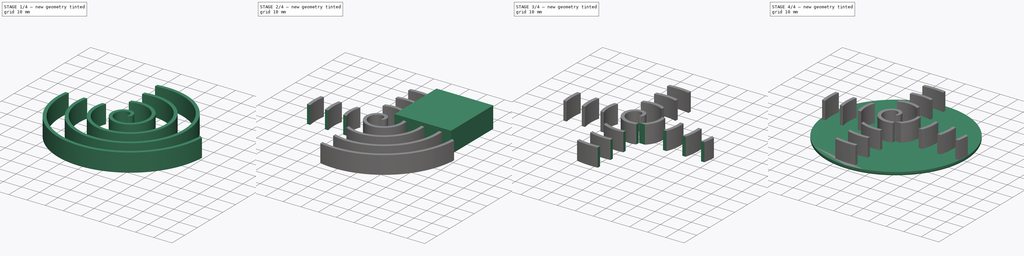
[diagram: build sequence overview — one tinted view per stage of 4, left to right]
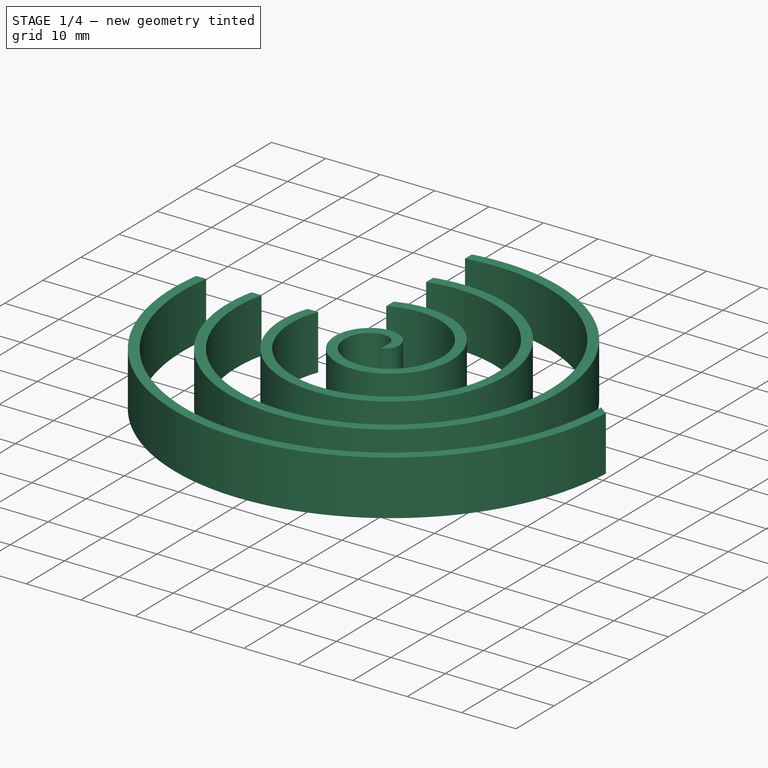
[diagram: stage 1 of 4 — iso view after this stage's code; geometry added in this stage tinted green]
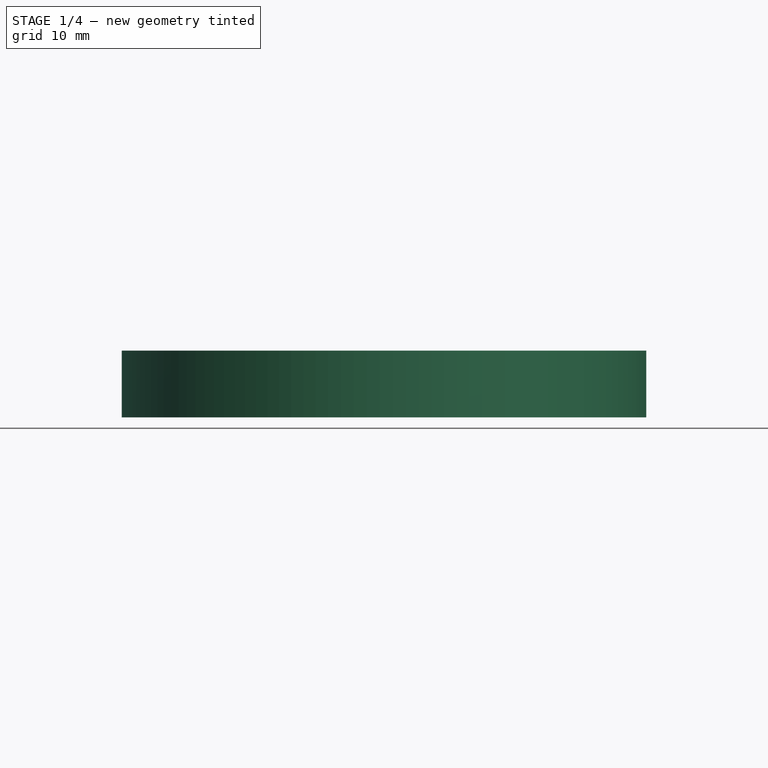
[diagram: stage 1 of 4 — front view after this stage's code; geometry added in this stage tinted green]
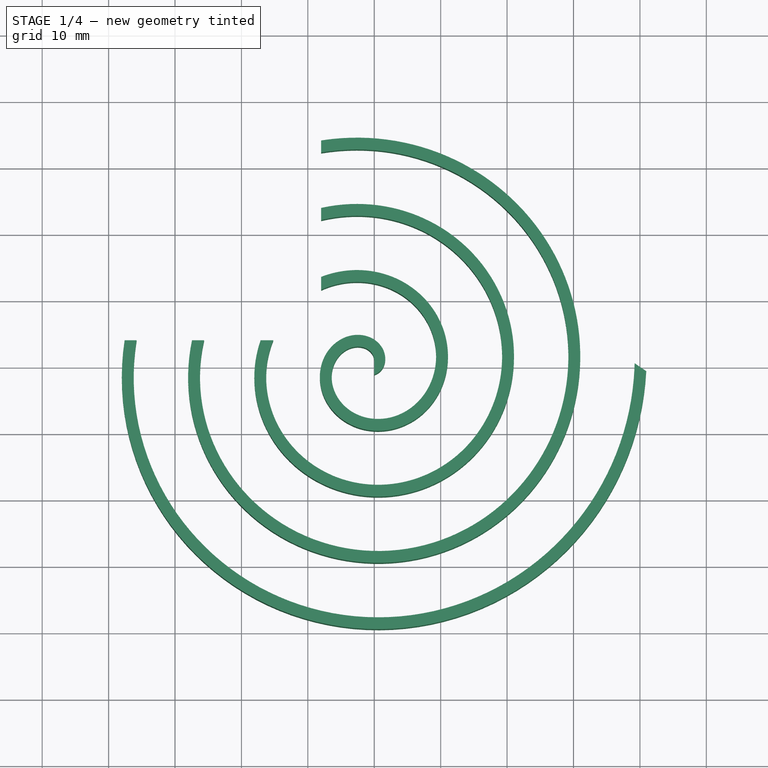
[diagram: stage 1 of 4 — top view after this stage's code; geometry added in this stage tinted green]
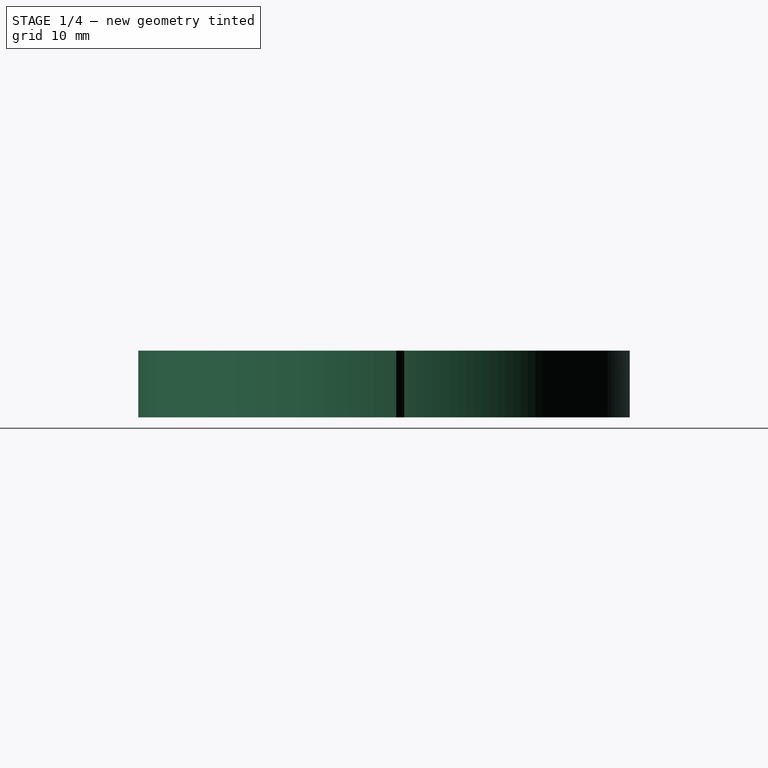
[diagram: stage 1 of 4 — right view after this stage's code; geometry added in this stage tinted green]
FCSTD DOCUMENT  (FreeCAD 0.14R2935 (Git))
Label: bo-spiral-dims-2
License: CC-BY 3.0
LicenseURL: http://creativecommons.org/licenses/by/3.0/
objects: Part::Box×4, Part::Cut×4, Sketcher::SketchObject×2, Part::Spiral×1, Part::Sweep×1, Part::Cylinder×1, Part::MultiFuse×1, Part::Fillet×1
note: 15 computed .brp shape members not serialized (recipe doc carries the construction recipe); baked Part::Feature solids carry a one-line shape summary decoded from their .brp

FEATURE [Sketcher::SketchObject] Sketch
FEATURE [Part::Spiral] Spiral
  Growth = 10
  Placement = pos=(-1,0,0) rot=(0,0,1;0rad)
  Radius = 1
  Rotations = 4
FEATURE [Sketcher::SketchObject] Sketch001
  Placement = pos=(0,0,0) rot=(0.57735,0.57735,0.57735;2.0944rad)
  sketch-geometry (4):
    g0: LineSegment StartX=-1.1461 StartY=5.07008 StartZ=0 EndX=0.963426 EndY=5.07008 EndZ=0
    g1: LineSegment StartX=0.963426 StartY=5.07008 StartZ=0 EndX=0.963426 EndY=-4.98874 EndZ=0
    g2: LineSegment StartX=0.963426 StartY=-4.98874 StartZ=0 EndX=-1.1461 EndY=-4.98874 EndZ=0
    g3: LineSegment StartX=-1.1461 StartY=-4.98874 StartZ=0 EndX=-1.1461 EndY=5.07008 EndZ=0
  constraints (8):
    c: Coincident(g0,g1)
    c: Coincident(g1,g2)
    c: Coincident(g2,g3)
    c: Coincident(g3,g0)
    c: Horizontal(g0)
    c: Horizontal(g2)
    c: Vertical(g1)
    c: Vertical(g3)
FEATURE [Part::Sweep] Sweep
  Frenet = false
  Sections = -> [Sketch001]
  Solid = true
  Spine = -> Spiral [Edge1]
  Transition = 1
FEATURE [Part::Box] Box
  Height = 12
  Length = 32
  Placement = pos=(-40,4,-5) rot=(0,0,1;0rad)
  Width = 34
FEATURE [Part::Cut] Cut
  Base = -> Sweep
  Tool = -> Box
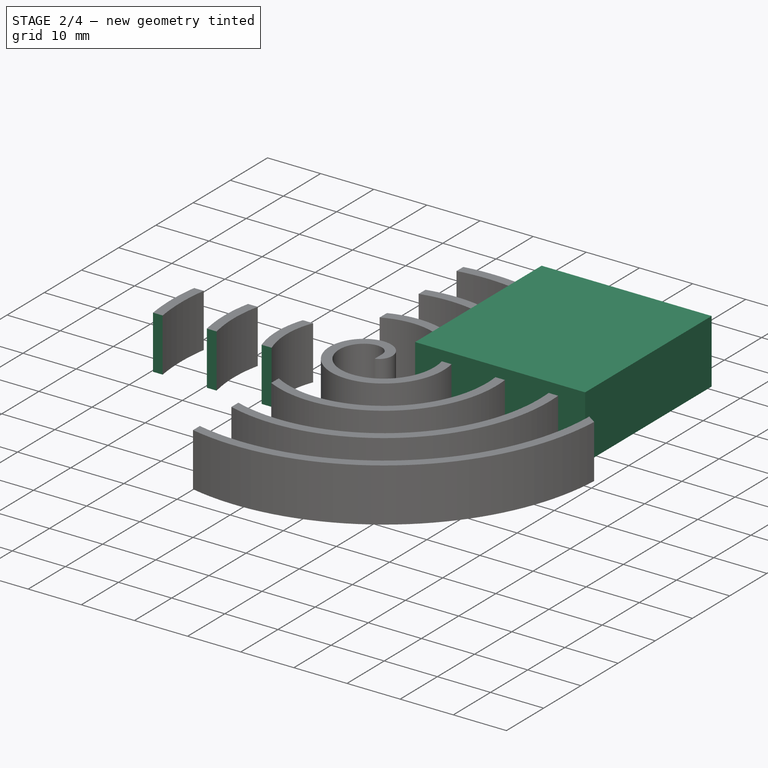
[diagram: stage 2 of 4 — iso view after this stage's code; geometry added in this stage tinted green]
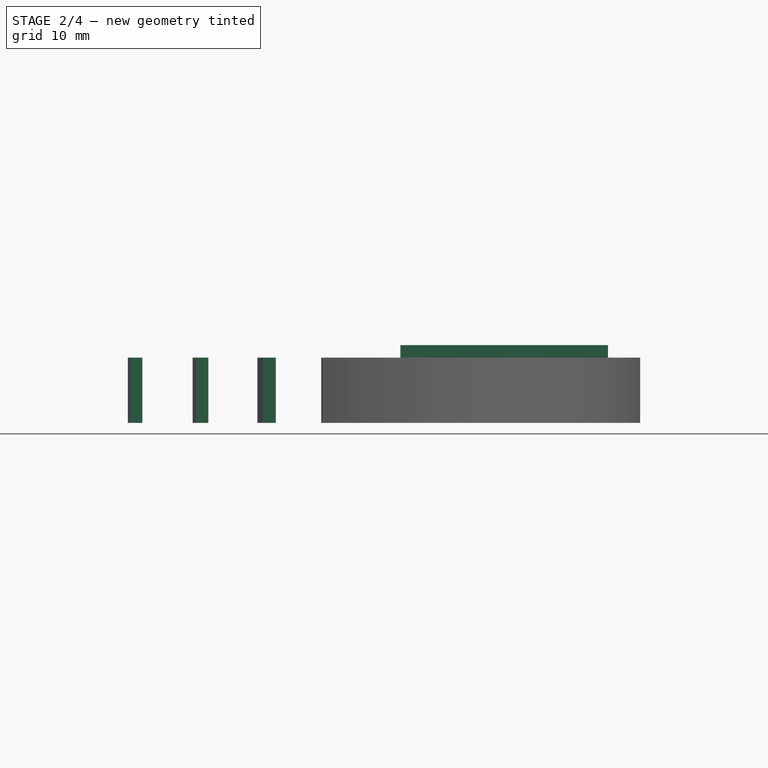
[diagram: stage 2 of 4 — front view after this stage's code; geometry added in this stage tinted green]
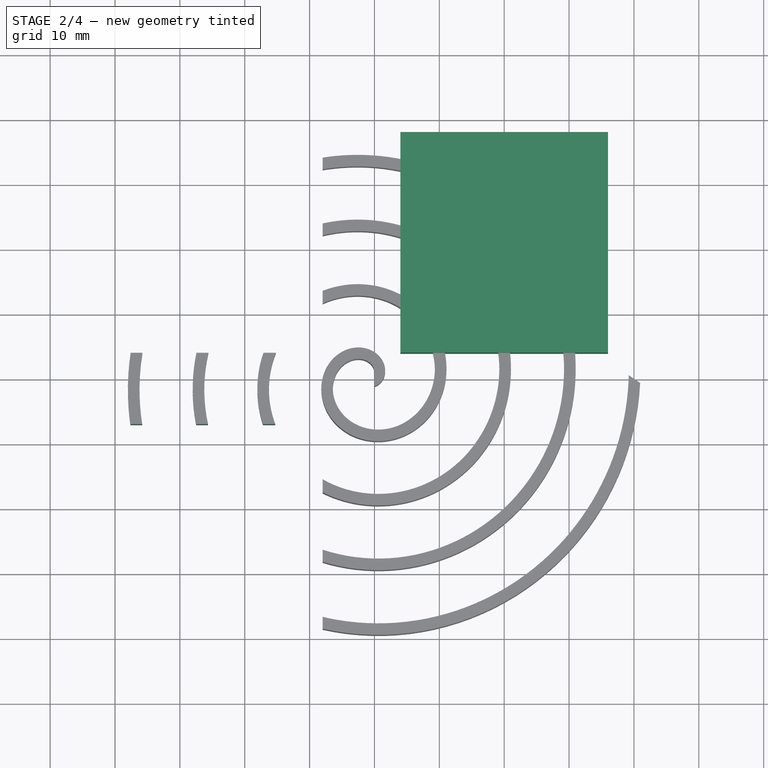
[diagram: stage 2 of 4 — top view after this stage's code; geometry added in this stage tinted green]
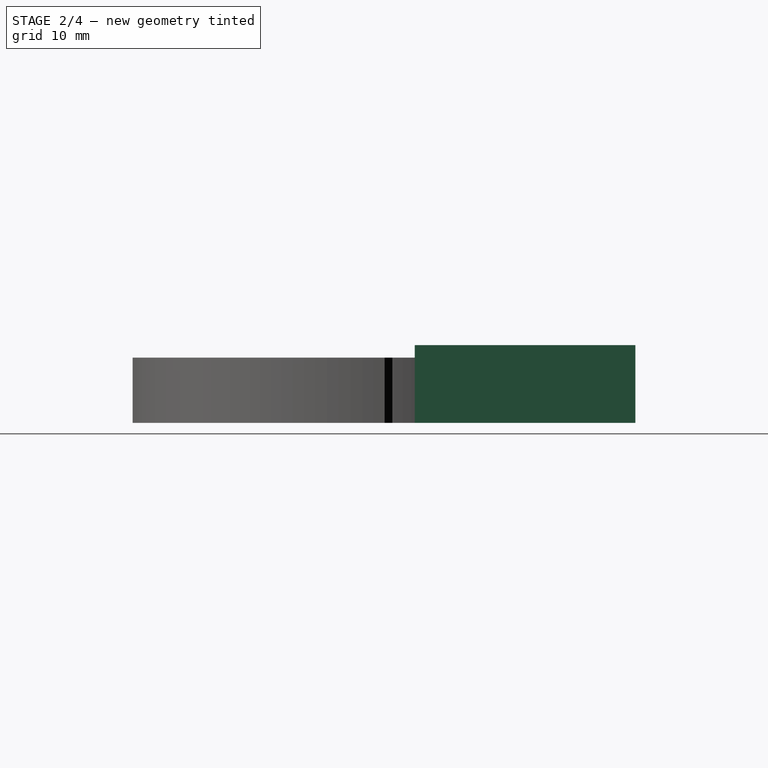
[diagram: stage 2 of 4 — right view after this stage's code; geometry added in this stage tinted green]
FEATURE [Part::Box] Box001
  Height = 12
  Length = 32
  Placement = pos=(-40,-41,-5) rot=(0,0,1;0rad)
  Width = 34
FEATURE [Part::Box] Box002
  Height = 12
  Length = 32
  Placement = pos=(4,4,-5) rot=(0,0,1;0rad)
  Width = 34
FEATURE [Part::Cut] Cut001
  Base = -> Cut
  Tool = -> Box001
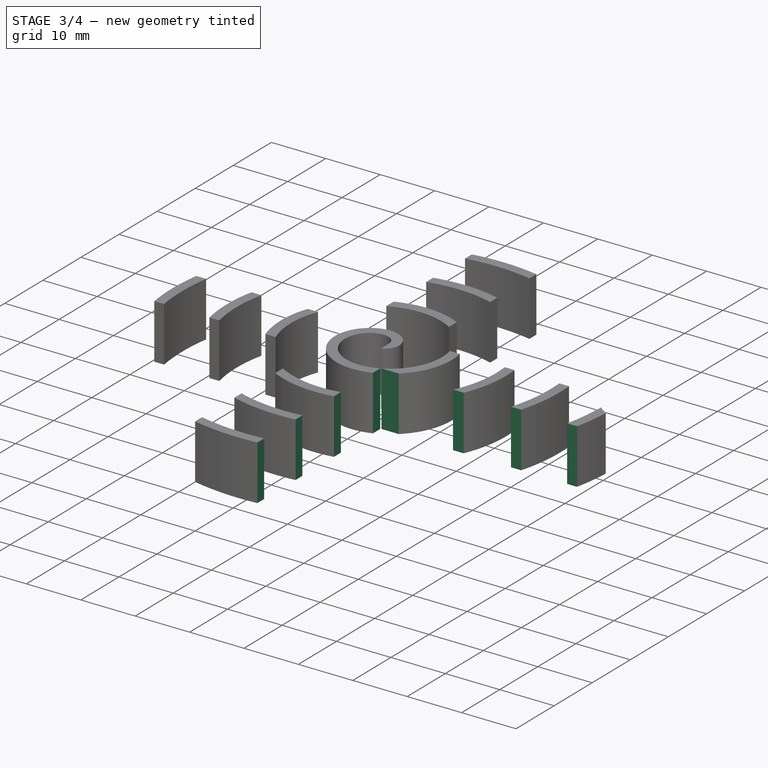
[diagram: stage 3 of 4 — iso view after this stage's code; geometry added in this stage tinted green]
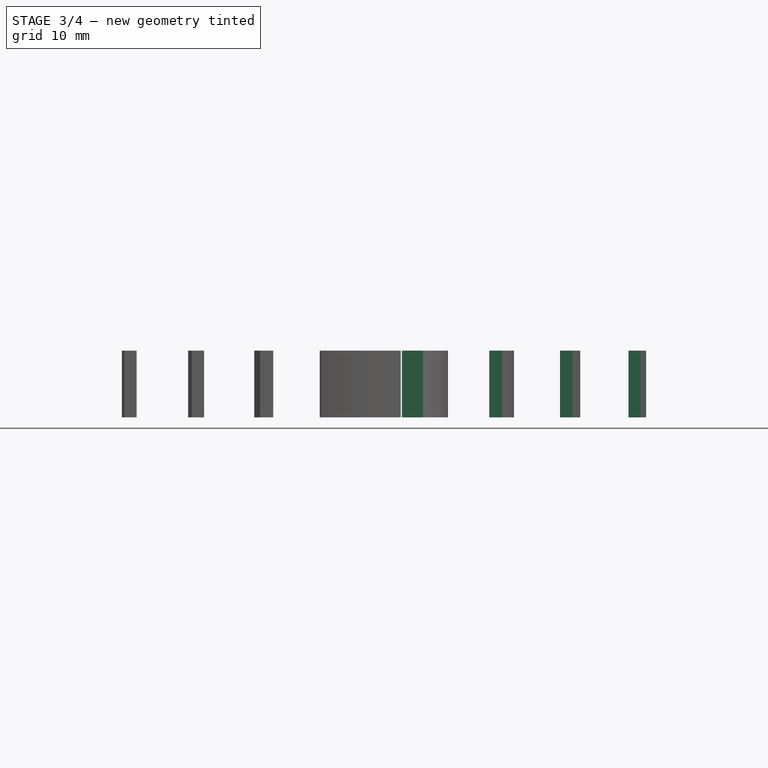
[diagram: stage 3 of 4 — front view after this stage's code; geometry added in this stage tinted green]
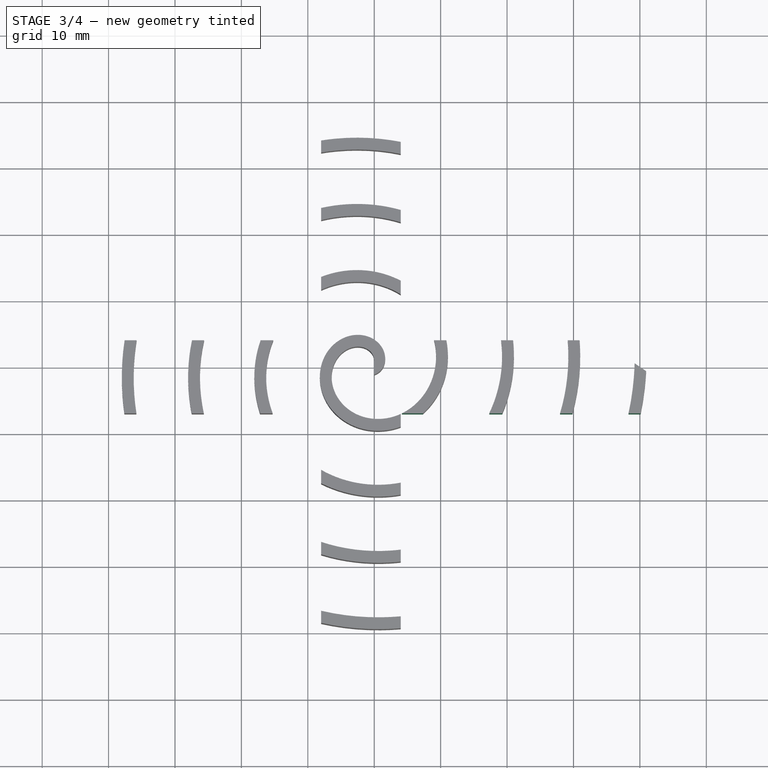
[diagram: stage 3 of 4 — top view after this stage's code; geometry added in this stage tinted green]
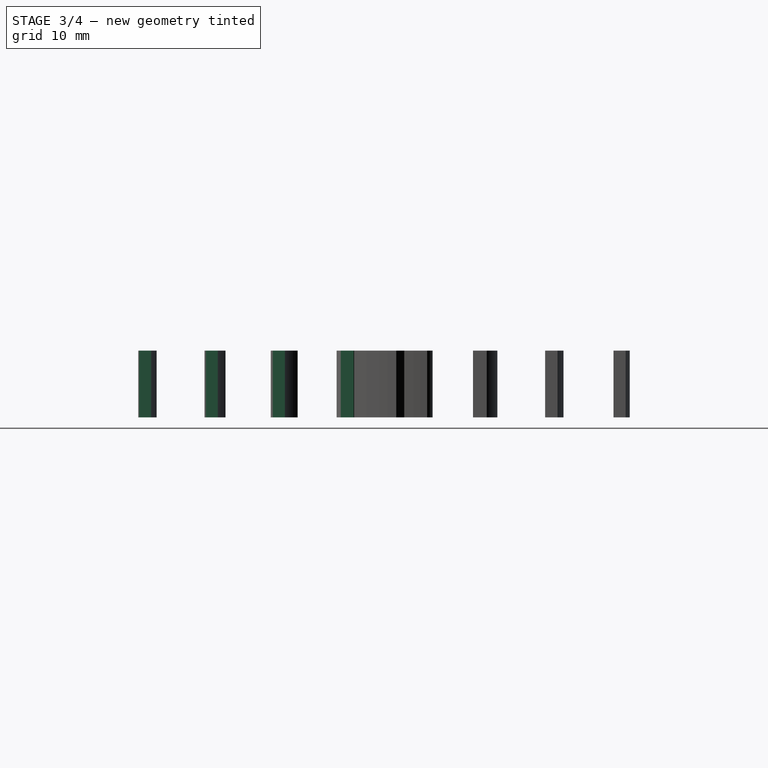
[diagram: stage 3 of 4 — right view after this stage's code; geometry added in this stage tinted green]
FEATURE [Part::Box] Box003
  Height = 12
  Length = 39
  Placement = pos=(4,-40,-5) rot=(0,0,1;0rad)
  Width = 33
FEATURE [Part::Cut] Cut002
  Base = -> Cut001
  Tool = -> Box002
FEATURE [Part::Cut] Cut003
  Base = -> Cut002
  Tool = -> Box003
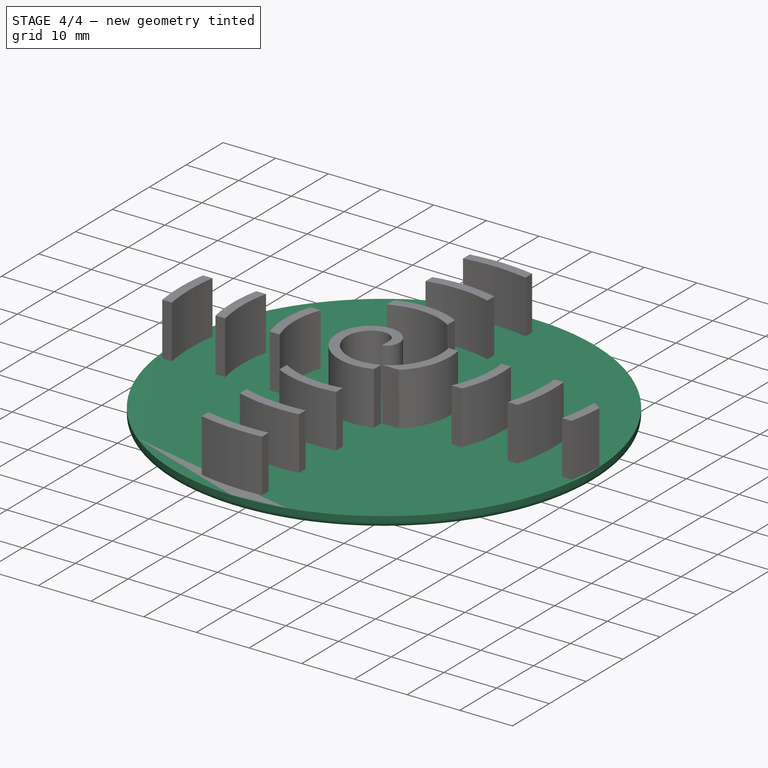
[diagram: stage 4 of 4 — iso view after this stage's code; geometry added in this stage tinted green]
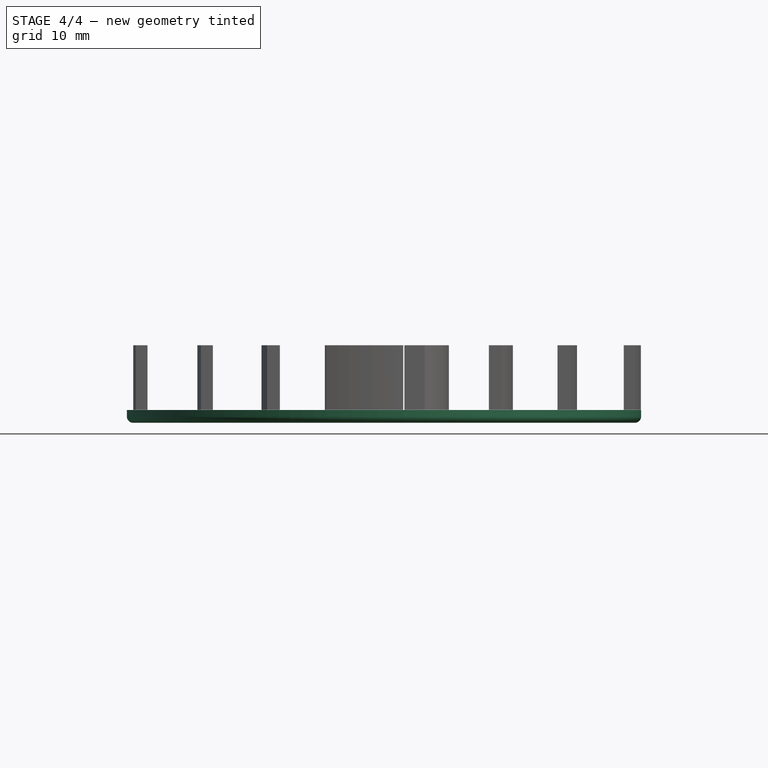
[diagram: stage 4 of 4 — front view after this stage's code; geometry added in this stage tinted green]
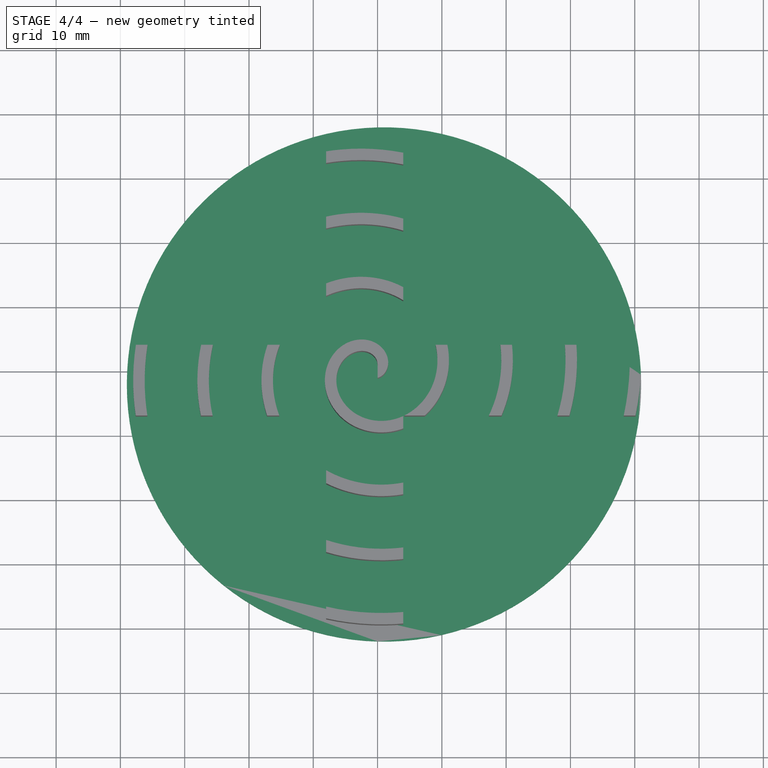
[diagram: stage 4 of 4 — top view after this stage's code; geometry added in this stage tinted green]
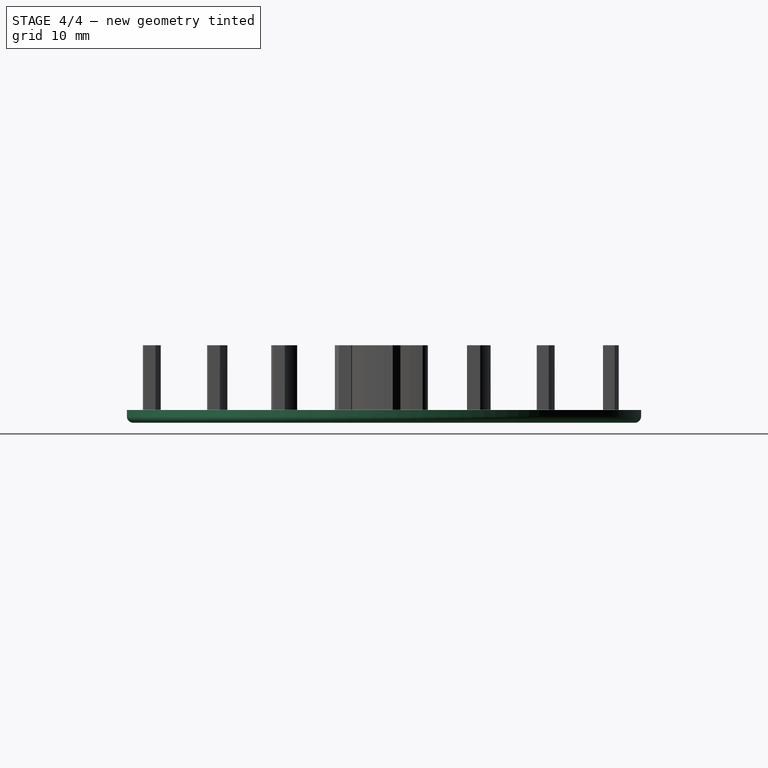
[diagram: stage 4 of 4 — right view after this stage's code; geometry added in this stage tinted green]
FEATURE [Part::Cylinder] Cylinder
  Angle = 360
  Height = 2
  Placement = pos=(1,-2,-7) rot=(0,0,1;0rad)
  Radius = 40
FEATURE [Part::MultiFuse] Fusion
  Shapes = -> [Cut003,Cylinder]
FEATURE [Part::Fillet] Fillet
  Base = -> Fusion
  Edges = 1 edges r=1: [Edge3]
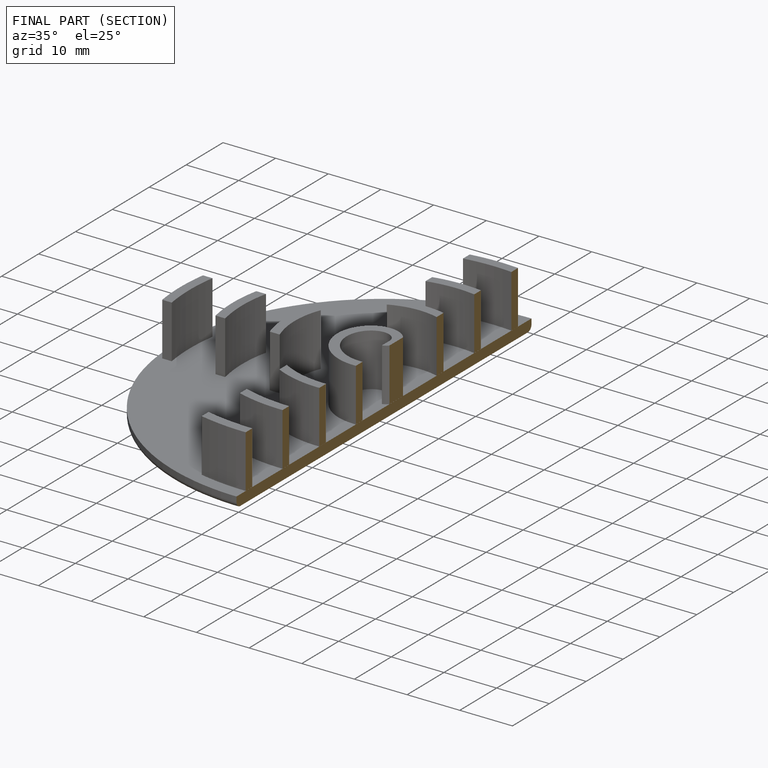
[diagram: finished part — half-section view (interior)]
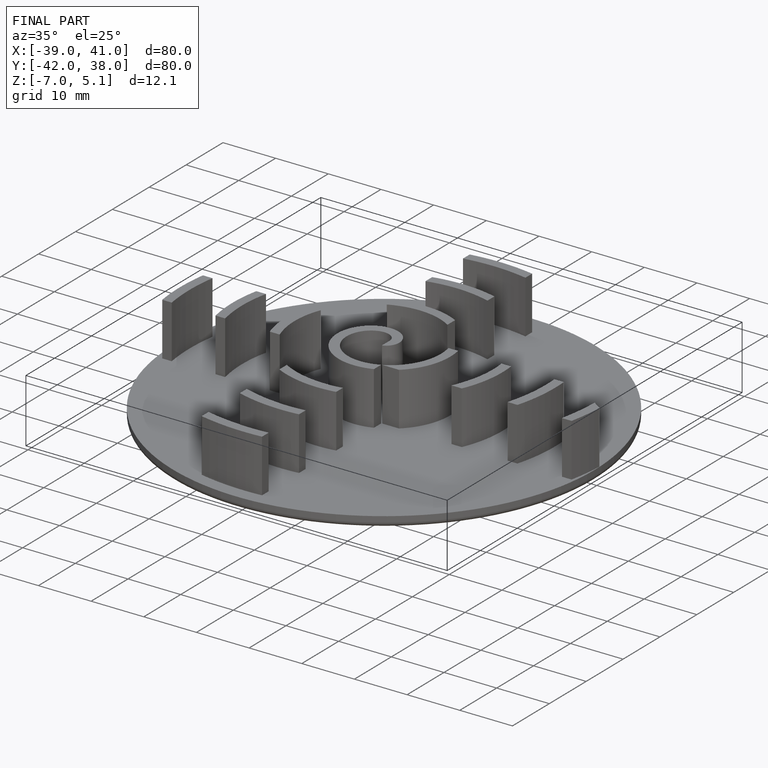
[diagram: finished part — iso view with bounding-box wireframe]
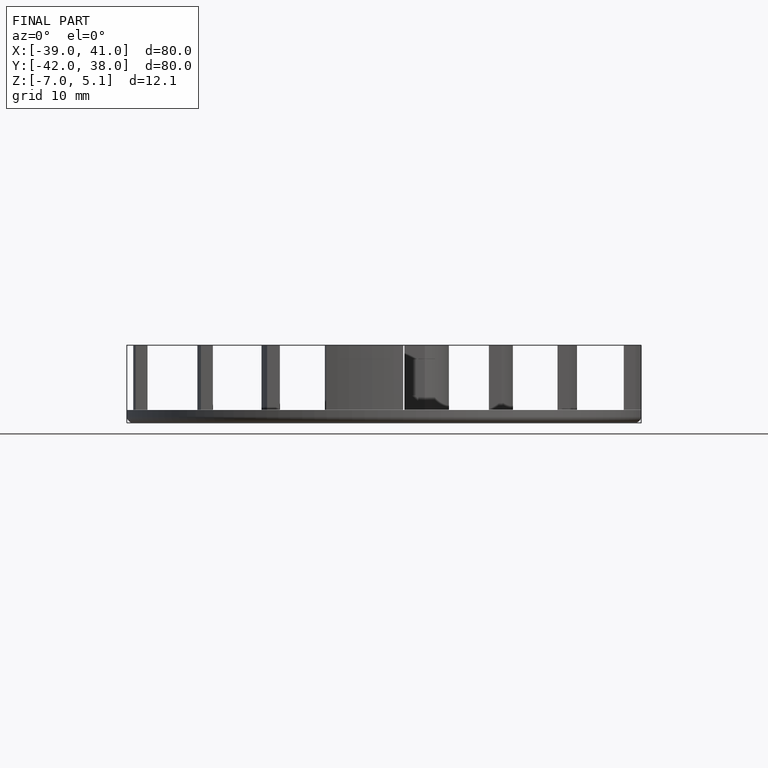
[diagram: finished part — front view with bounding-box wireframe]
